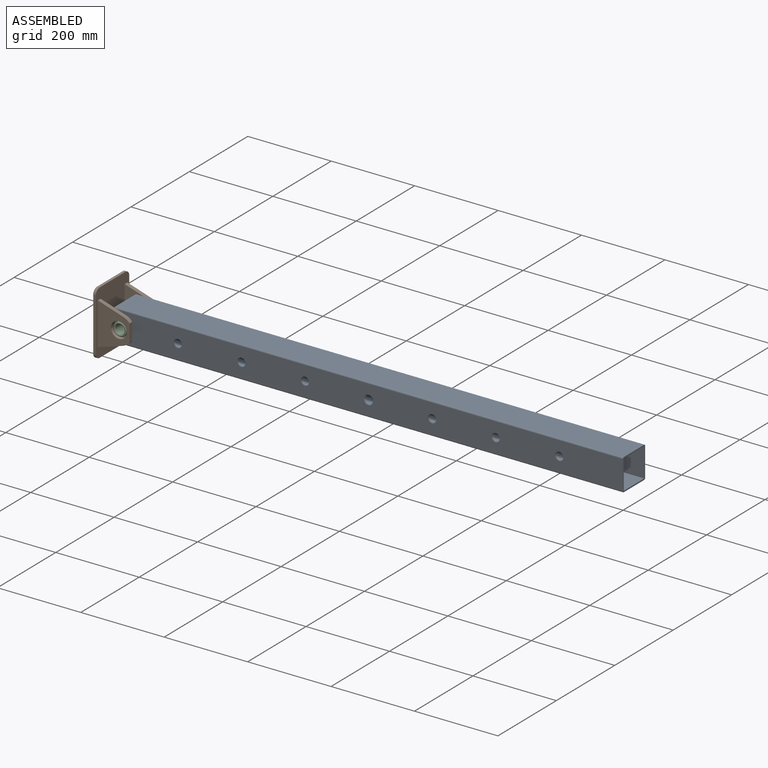
[diagram: assembled view]
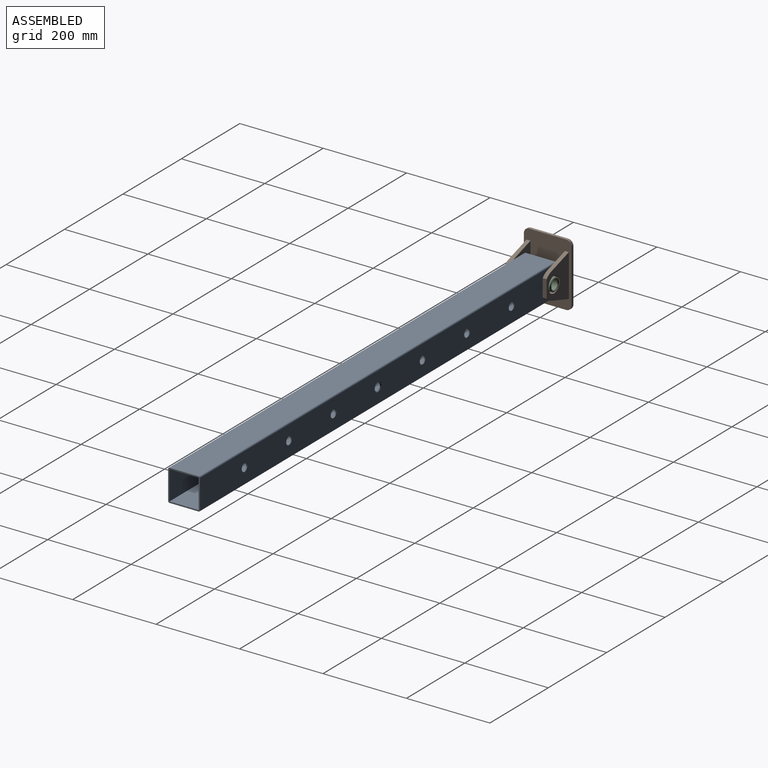
[diagram: assembled view, second angle]
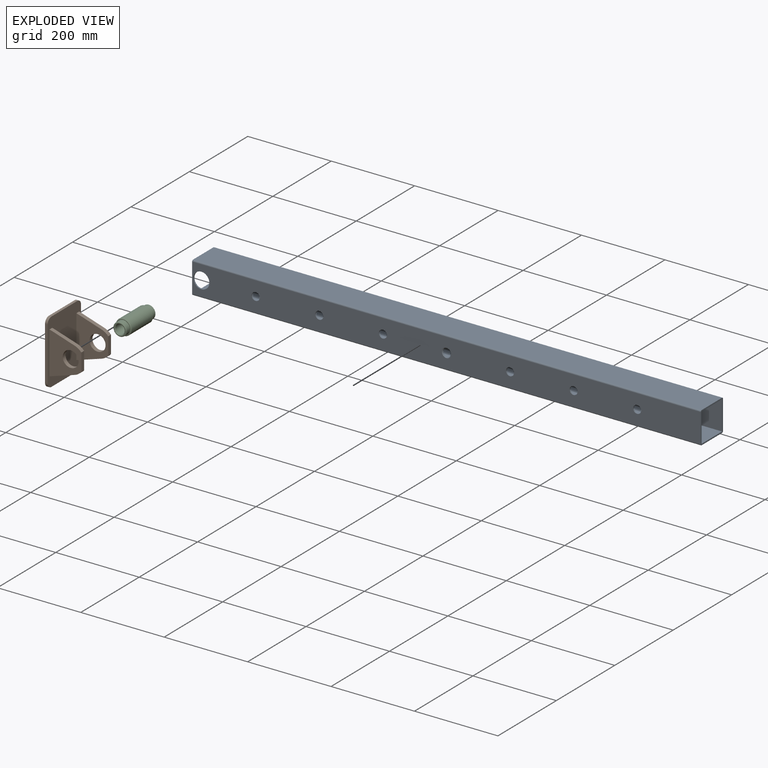
[diagram: exploded view]
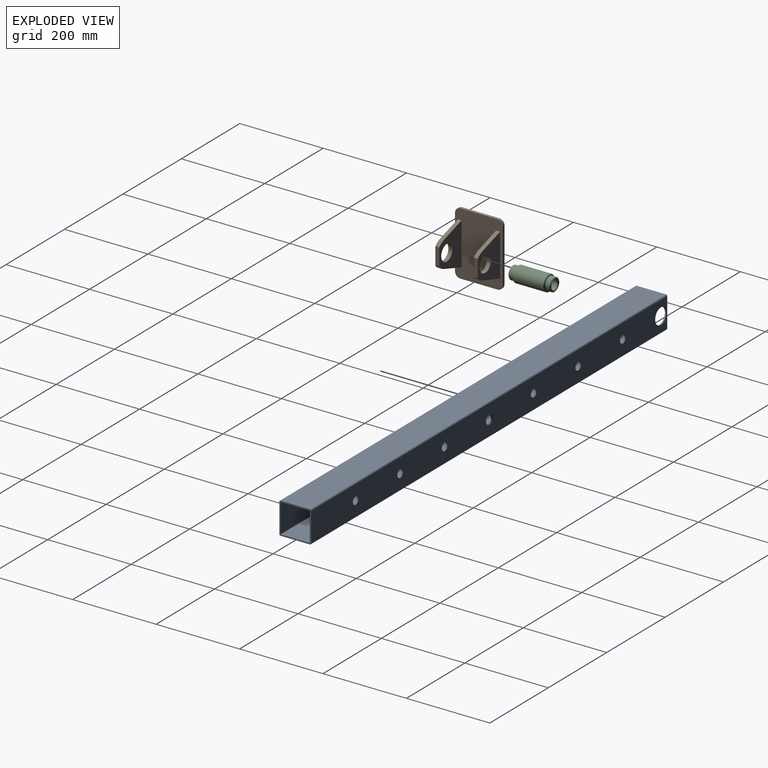
[diagram: exploded view, second angle]
ASSEMBLY  parts=3 mates=2
PART A: 32 faces, bbox 1219.2x76.2x76.2 mm
  f0: plane 1219.2x69.85mm, normal (0,0,1), area 85161.1mm2, adj f1,f11,f12,f13
  f1: cylinder r=3.17mm len=1219.2mm, axis (-1,0,0), area 6080.5mm2, adj f0,f2,f12,f13
  f2: plane 1219.2x69.85mm, normal (0,-1,0), area 81922.9mm2, adj f1,f3,f12,f13,f17,f18,f19,f20
  f3: cylinder r=3.17mm len=1219.2mm, axis (-1,0,0), area 6080.5mm2, adj f2,f4,f12,f13
  f4: plane 1219.2x69.85mm, normal (0,0,-1), area 85161.1mm2, adj f3,f5,f12,f13
  f5: cylinder r=3.17mm len=1219.2mm, axis (-1,0,0), area 6080.5mm2, adj f4,f6,f12,f13
  f6: plane 1219.2x69.85mm, normal (0,1,0), area 81922.9mm2, adj f5,f11,f12,f13,f16,f24,f25,f26
  f7: plane 1219.2x69.85mm, normal (0,0,-1), area 85161.1mm2, adj f8,f10,f12,f13
  f8: plane 1219.2x69.85mm, normal (0,-1,0), area 82025.9mm2, adj f7,f9,f12,f13,f15,f24,f25,f26
  f9: plane 1219.2x69.85mm, normal (0,0,1), area 85161.1mm2, adj f8,f10,f12,f13
  f10: plane 1219.2x69.85mm, normal (0,1,0), area 82025.9mm2, adj f7,f9,f12,f13,f14,f18,f19,f20
  f11: cylinder r=3.17mm len=1219.2mm, axis (-1,0,0), area 6080.5mm2, adj f0,f6,f12,f13
  f12: plane 76.2x76.2mm, normal (1,0,0), area 918.8mm2, adj f0,f1,f2,f3,f4,f5,f6,f7
  f13: plane 76.2x76.2mm, normal (-1,0,0), area 918.8mm2, adj f0,f1,f2,f3,f4,f5,f6,f7
  f14: cylinder r=9.53mm len=19.05mm, axis (0,-1,0), area 95mm2, adj f10,f17
  f15: cylinder r=9.53mm len=19.05mm, axis (0,-1,0), area 95mm2, adj f8,f16
  f16: cone r=9.53mm half-angle=45deg, axis (0,1,0), area 145.6mm2, adj f6,f15
  f17: cone r=9.53mm half-angle=45deg, axis (0,-1,0), area 145.6mm2, adj f2,f14
  f18: cylinder r=9.53mm len=19.05mm, axis (0,-1,0), area 190mm2, adj f2,f10
  f19: cylinder r=9.53mm len=19.05mm, axis (0,-1,0), area 190mm2, adj f2,f10
  f20: cylinder r=9.53mm len=19.05mm, axis (0,-1,0), area 190mm2, adj f2,f10
  f21: cylinder r=9.53mm len=19.05mm, axis (0,-1,0), area 190mm2, adj f2,f10
  f22: cylinder r=9.53mm len=19.05mm, axis (0,-1,0), area 190mm2, adj f2,f10
  f23: cylinder r=9.53mm len=19.05mm, axis (0,-1,0), area 190mm2, adj f2,f10
  f24: cylinder r=9.53mm len=19.05mm, axis (0,-1,0), area 190mm2, adj f6,f8
  f25: cylinder r=9.53mm len=19.05mm, axis (0,-1,0), area 190mm2, adj f6,f8
  f26: cylinder r=9.53mm len=19.05mm, axis (0,-1,0), area 190mm2, adj f6,f8
  f27: cylinder r=9.53mm len=19.05mm, axis (0,-1,0), area 190mm2, adj f6,f8
  f28: cylinder r=9.53mm len=19.05mm, axis (0,-1,0), area 190mm2, adj f6,f8
  f29: cylinder r=9.53mm len=19.05mm, axis (0,-1,0), area 190mm2, adj f6,f8
  f30: cylinder r=19.05mm len=38.1mm, axis (0,-1,0), area 380mm2, adj f2,f10
  f31: cylinder r=19.05mm len=38.1mm, axis (0,-1,0), area 380mm2, adj f6,f8
PART B: 26 faces, bbox 82.6x114.3x152.4 mm
  f0: plane 42.2x9.53mm, normal (-1,0,0), area 401.9mm2, adj f1,f2,f22,f24
  f1: plane 101.6x76.2mm, normal (0,1,0), area 4704.5mm2, adj f0,f3,f21,f22,f23,f24,f25
  f2: plane 101.6x76.2mm, normal (0,-1,0), area 4704.5mm2, adj f0,f3,f21,f22,f23,f24,f25
  f3: plane 152.4x114.3mm, normal (-1,0,0), area 15345.4mm2, adj f1,f2,f5,f6,f7,f8,f9,f10
  f4: plane 42.2x9.53mm, normal (-1,0,0), area 401.9mm2, adj f5,f6,f17,f19
  f5: plane 101.6x76.2mm, normal (0,-1,0), area 4704.5mm2, adj f3,f4,f16,f17,f18,f19,f20
  f6: plane 101.6x76.2mm, normal (0,1,0), area 4704.5mm2, adj f3,f4,f16,f17,f18,f19,f20
  f7: plane 88.9x6.35mm, normal (0,0,1), area 564.5mm2, adj f3,f8,f14,f15
  f8: cylinder r=12.7mm len=12.7mm, axis (-1,0,0), area 126.7mm2, adj f3,f7,f9,f15
  f9: plane 127x6.35mm, normal (0,-1,0), area 806.5mm2, adj f3,f8,f10,f15
  f10: cylinder r=12.7mm len=12.7mm, axis (-1,0,0), area 126.7mm2, adj f3,f9,f11,f15
  f11: plane 88.9x6.35mm, normal (0,0,-1), area 564.5mm2, adj f3,f10,f12,f15
  f12: cylinder r=12.7mm len=12.7mm, axis (-1,0,0), area 126.7mm2, adj f3,f11,f13,f15
  f13: plane 127x6.35mm, normal (0,1,0), area 806.5mm2, adj f3,f12,f14,f15
  f14: cylinder r=12.7mm len=12.7mm, axis (-1,0,0), area 126.7mm2, adj f3,f7,f13,f15
  f15: plane 152.4x114.3mm, normal (1,0,0), area 17280.9mm2, adj f7,f8,f9,f10,f11,f12,f13,f14
  f16: cylinder r=19.05mm len=38.1mm, axis (0,-1,0), area 1140.1mm2, adj f5,f6
  f17: cylinder r=33.02mm len=15.4mm, axis (0,-1,0), area 179.2mm2, adj f4,f5,f6,f18
  f18: plane 60.81x19.33mm, normal (-0.3,0,-0.95), area 607.7mm2, adj f3,f5,f6,f17
  f19: cylinder r=33.02mm len=15.4mm, axis (0,-1,0), area 179.2mm2, adj f4,f5,f6,f20
  f20: plane 60.81x19.33mm, normal (-0.3,0,0.95), area 607.7mm2, adj f3,f5,f6,f19
  f21: cylinder r=19.05mm len=38.1mm, axis (0,1,0), area 1140.1mm2, adj f1,f2
  f22: cylinder r=33.02mm len=15.4mm, axis (0,1,0), area 179.2mm2, adj f0,f1,f2,f23
  f23: plane 60.81x19.33mm, normal (-0.3,0,-0.95), area 607.7mm2, adj f1,f2,f3,f22
  f24: cylinder r=33.02mm len=15.4mm, axis (0,1,0), area 179.2mm2, adj f0,f1,f2,f25
  f25: plane 60.81x19.33mm, normal (-0.3,0,0.95), area 607.7mm2, adj f1,f2,f3,f24
PART C: 14 faces, bbox 38.1x101.6x38.1 mm
  f0: cylinder r=19.05mm len=73.03mm, axis (0,1,0), area 8740.7mm2, adj f3,f4
  f1: plane 34.93x34.93mm, normal (0,-1,0), area 166.3mm2, adj f4,f7
  f2: plane 34.93x34.93mm, normal (0,1,0), area 166.3mm2, adj f3,f5
  f3: cone r=19.05mm half-angle=45deg, axis (0,-1,0), area 257.5mm2, adj f0,f2
  f4: cone r=17.46mm half-angle=45deg, axis (0,1,0), area 257.5mm2, adj f0,f1
  f5: cylinder r=15.88mm len=31.75mm, axis (0,1,0), area 1108.4mm2, adj f2,f11
  f6: cylinder r=11.11mm len=98.43mm, axis (0,1,0), area 6872.2mm2, adj f12,f13
  f7: cylinder r=15.88mm len=31.75mm, axis (0,1,0), area 1108.4mm2, adj f1,f10
  f8: plane 28.58x28.58mm, normal (0,-1,0), area 134.6mm2, adj f10,f13
  f9: plane 28.58x28.58mm, normal (0,1,0), area 134.6mm2, adj f11,f12
  f10: cone r=14.29mm half-angle=45deg, axis (0,1,0), area 212.7mm2, adj f7,f8
  f11: cone r=15.88mm half-angle=45deg, axis (0,-1,0), area 212.7mm2, adj f5,f9
  f12: cone r=12.7mm half-angle=45deg, axis (0,1,0), area 168mm2, adj f6,f9
  f13: cone r=11.11mm half-angle=45deg, axis (0,-1,0), area 168mm2, adj f6,f8
PLACE A t=(-595.55,-0.19,57.4)mm
PLACE B rot(axis=(0,1,0),180deg) t=(-624.71,1.1,69.44)mm
PLACE C t=(-573.91,3.48,69.44)mm
MATE revolute B.f16 <-> C.f5  axis (0,-1,0) through (-573.91,47.14,69.44)mm
MATE parallel A.f2 <-> C.f0  axis (0,-1,0) through (22.22,-34.62,69.44)mm
